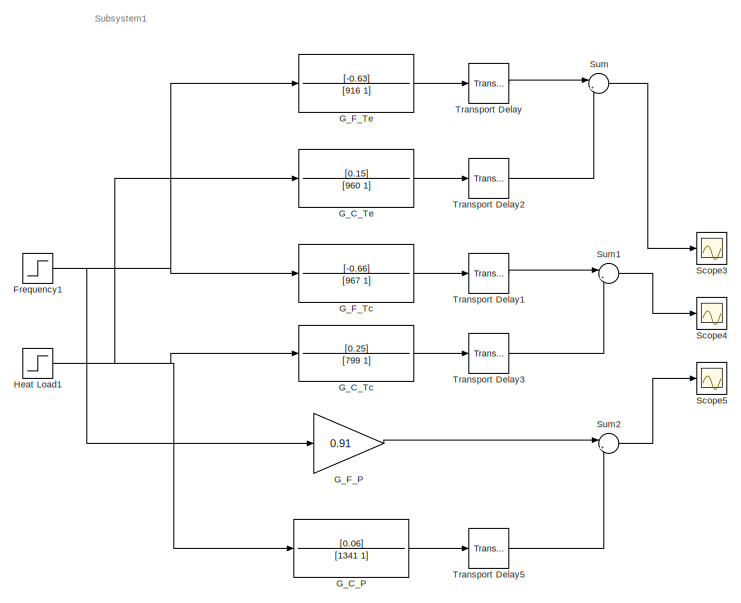
[diagram: root canvas - part 1/2, left side, full height]
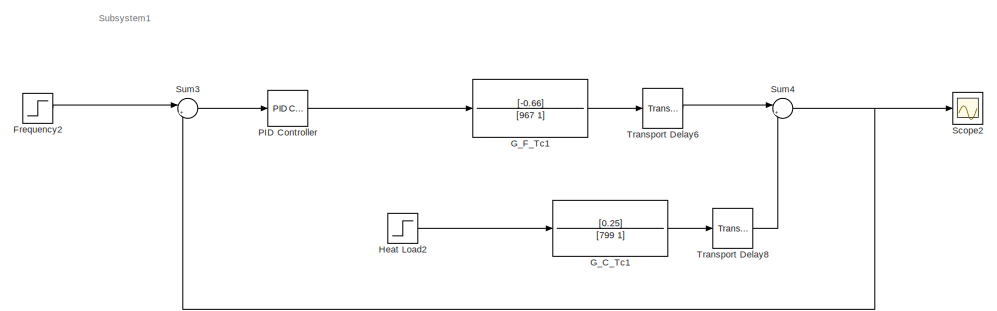
[diagram: root canvas - part 2/2, bottom right region]
MODEL slx_39e3b8b81791
KIND model
CONFIG AbsTol = auto
CONFIG EnableMultiTasking = off
CONFIG FixedStep = auto
CONFIG MaxStep = auto
CONFIG MinStep = auto
CONFIG RelTol = 1e-3
CONFIG SampleTimeConstraint = Unconstrained
CONFIG SolverName = VariableStepAuto
CONFIG StartTime = 0.0
CONFIG StopTime = 5000
BLOCK [Step] Frequency1
  SampleTime = 0
  Time = 60
BLOCK [Step] Frequency2
  SampleTime = 0
  Time = 60
BLOCK [TransferFcn] G_C_P
  Denominator = [1341 1]
  Numerator = [0.06]
BLOCK [TransferFcn] G_C_Tc
  Denominator = [799 1]
  Numerator = [0.25]
BLOCK [TransferFcn] G_C_Tc1
  Denominator = [799 1]
  Numerator = [0.25]
BLOCK [TransferFcn] G_C_Te
  Denominator = [960 1]
  Numerator = [0.15]
BLOCK [Gain] G_F_P
  Gain = 0.91
BLOCK [TransferFcn] G_F_Tc
  Denominator = [967 1]
  Numerator = [-0.66]
BLOCK [TransferFcn] G_F_Tc1
  Denominator = [967 1]
  Numerator = [-0.66]
BLOCK [TransferFcn] G_F_Te
  Denominator = [916 1]
  Numerator = [-0.63]
BLOCK [Step] Heat Load1
  SampleTime = 0
  Time = 10
BLOCK [Step] Heat Load2
  SampleTime = 0
  Time = 1430
BLOCK [Reference] PID Controller  REF=pid_lib/PID Controller
  Ports = [1, 1]
  SourceBlock = pid_lib/PID Controller
  SourceProductBaseCode = SL
  SourceType = PID 1dof
BLOCK [Scope] Scope2
  Floating = off
  NumInputPorts = 1
  Ports = [1]
  ScopeSpecificationString = Simulink.scopes.TimeScopeBlockCfg('CurrentConfiguration', extmgr.ConfigurationSet(extmgr.Configuration('Core','General UI',true),extmgr.Configuration('Core','Source UI',true),extmgr.Configuration('Sources','WiredSimulink',true,'DataLoggingVariableName','ScopeData2'),extmgr.Configuration('Visuals','Time Domain',true,'SerializedDisplays',{struct('MinYLimReal','-0.55631','MaxYLimReal','0.06181','YLab...<+1392ch>
BLOCK [Scope] Scope3
  Floating = off
  NumInputPorts = 1
  Ports = [1]
  ScopeSpecificationString = Simulink.scopes.TimeScopeBlockCfg('CurrentConfiguration', extmgr.ConfigurationSet(extmgr.Configuration('Core','General UI',true,'FigureColor',[0.941176470588235 0.941176470588235 0.941176470588235]),extmgr.Configuration('Core','Source UI',true),extmgr.Configuration('Sources','WiredSimulink',true,'DataLoggingVariableName','ScopeData1'),extmgr.Configuration('Visuals','Time Domain',true,'SerializedDi...<+1648ch>
BLOCK [Scope] Scope4
  Floating = off
  NumInputPorts = 1
  Ports = [1]
  ScopeSpecificationString = Simulink.scopes.TimeScopeBlockCfg('CurrentConfiguration', extmgr.ConfigurationSet(extmgr.Configuration('Core','General UI',true),extmgr.Configuration('Core','Source UI',true),extmgr.Configuration('Sources','WiredSimulink',true,'DataLoggingVariableName','ScopeData2'),extmgr.Configuration('Visuals','Time Domain',true,'SerializedDisplays',{struct('MinYLimReal','-0.55631','MaxYLimReal','0.06181','YLab...<+1399ch>
BLOCK [Scope] Scope5
  Floating = off
  NumInputPorts = 1
  Ports = [1]
  ScopeSpecificationString = Simulink.scopes.TimeScopeBlockCfg('CurrentConfiguration', extmgr.ConfigurationSet(extmgr.Configuration('Core','General UI',true),extmgr.Configuration('Core','Source UI',true),extmgr.Configuration('Sources','WiredSimulink',true,'DataLoggingVariableName','ScopeData3'),extmgr.Configuration('Visuals','Time Domain',true,'SerializedDisplays',{struct('MinYLimReal','-0.12065','MaxYLimReal','1.08585','YLab...<+1388ch>
BLOCK [Sum] Sum
  Inputs = |++
  Ports = [2, 1]
BLOCK [Sum] Sum1
  Inputs = |++
  Ports = [2, 1]
BLOCK [Sum] Sum2
  Inputs = |++
  Ports = [2, 1]
BLOCK [Sum] Sum3
  Inputs = |+-
  Ports = [2, 1]
BLOCK [Sum] Sum4
  Inputs = |++
  Ports = [2, 1]
BLOCK [TransportDelay] Transport Delay
  DelayTime = 15
  Ports = [1, 1]
BLOCK [TransportDelay] Transport Delay1
  DelayTime = 35
  Ports = [1, 1]
BLOCK [TransportDelay] Transport Delay2
  DelayTime = 42
  Ports = [1, 1]
BLOCK [TransportDelay] Transport Delay3
  DelayTime = 15
  Ports = [1, 1]
BLOCK [TransportDelay] Transport Delay5
  DelayTime = 182
  Ports = [1, 1]
BLOCK [TransportDelay] Transport Delay6
  DelayTime = 35
  Ports = [1, 1]
BLOCK [TransportDelay] Transport Delay8
  DelayTime = 15
  Ports = [1, 1]
ANNOTATION (root): Subsystem1
NET Frequency1:1 -> G_F_P:1, G_F_Tc:1, G_F_Te:1
LINE Frequency2:1 -> Sum3:1
LINE G_C_P:1 -> Transport Delay5:1
LINE G_C_Tc1:1 -> Transport Delay8:1
LINE G_C_Tc:1 -> Transport Delay3:1
LINE G_C_Te:1 -> Transport Delay2:1
LINE G_F_P:1 -> Sum2:1
LINE G_F_Tc1:1 -> Transport Delay6:1
LINE G_F_Tc:1 -> Transport Delay1:1
LINE G_F_Te:1 -> Transport Delay:1
NET Heat Load1:1 -> G_C_P:1, G_C_Tc:1, G_C_Te:1
LINE Heat Load2:1 -> G_C_Tc1:1
LINE PID Controller:1 -> G_F_Tc1:1
LINE Sum1:1 -> Scope4:1
LINE Sum2:1 -> Scope5:1
LINE Sum3:1 -> PID Controller:1
NET Sum4:1 -> Scope2:1, Sum3:2
LINE Sum:1 -> Scope3:1
LINE Transport Delay1:1 -> Sum1:1
LINE Transport Delay2:1 -> Sum:2
LINE Transport Delay3:1 -> Sum1:2
LINE Transport Delay5:1 -> Sum2:2
LINE Transport Delay6:1 -> Sum4:1
LINE Transport Delay8:1 -> Sum4:2
LINE Transport Delay:1 -> Sum:1
note: NET lines group one-source signal fan-out (src -> all destinations, sorted); 1:1 wires keep LINE
